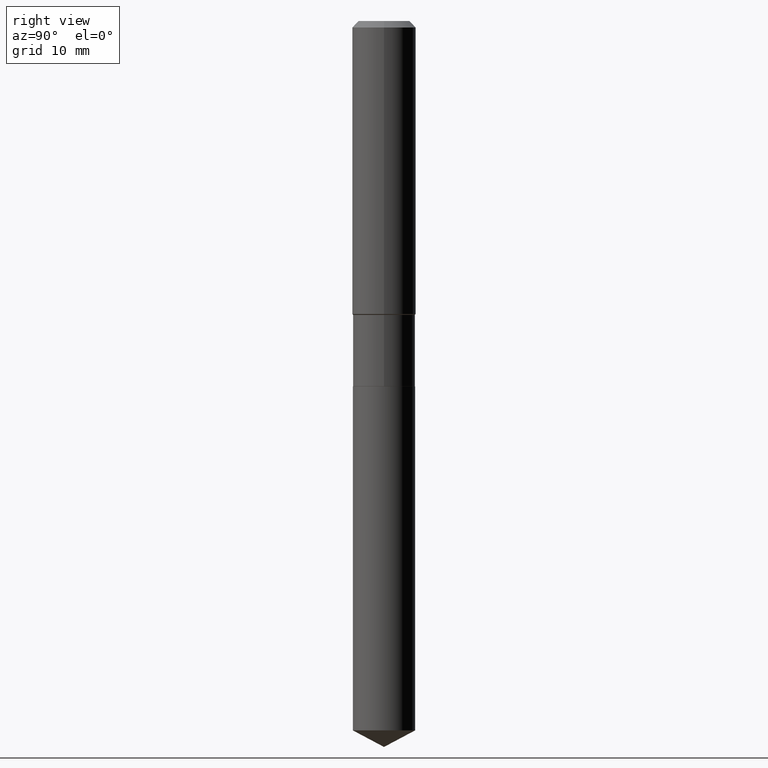
[diagram: clean part render]
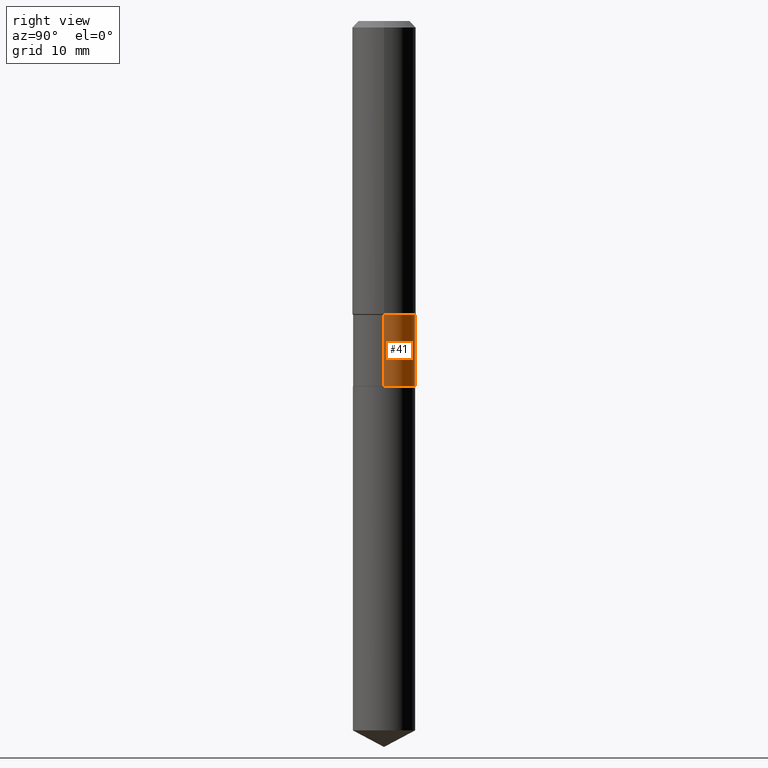
[diagram: same view with one face highlighted and labeled with its STEP entity id]
A machine part, right view. The second image highlights one B-rep face of the part: STEP entity #41.
In plain terms, the highlighted cylindrical surface (edge-blend (fillet) strip) has radius 3.9002 mm, axis along (-0, 0, 1).
Its self-contained STEP definition (entity closure, byte-faithful):
#32 = VERTEX_POINT ( 'NONE', #226 ) ;
#40 = CARTESIAN_POINT ( 'NONE',  ( 0.000000000000000000, 0.000000000000000000, 0.000000000000000000 ) ) ;
#41 = ADVANCED_FACE ( 'NONE', ( #76 ), #222, .T. ) ;
#46 = DIRECTION ( 'NONE',  ( 1.000000000000000000, -6.982962677686269077E-15, 0.000000000000000000 ) ) ;
#67 = ORIENTED_EDGE ( 'NONE', *, *, #321, .T. ) ;
#74 = DIRECTION ( 'NONE',  ( -2.445468806185136877E-29, 3.491481338843145188E-15, 1.000000000000000000 ) ) ;
#76 = FACE_OUTER_BOUND ( 'NONE', #359, .T. ) ;
#109 = CARTESIAN_POINT ( 'NONE',  ( -0.1535499999999999921, -4.587332304667917085E-15, -1.802700000000000191 ) ) ;
#110 = VERTEX_POINT ( 'NONE', #264 ) ;
#120 = CARTESIAN_POINT ( 'NONE',  ( 4.408446616909946105E-29, -6.294093409532539036E-15, -1.802700000000000191 ) ) ;
#171 = AXIS2_PLACEMENT_3D ( 'NONE', #460, #481, #418 ) ;
#173 = DIRECTION ( 'NONE',  ( -2.445468806185136877E-29, 3.491481338843145188E-15, 1.000000000000000000 ) ) ;
#177 = AXIS2_PLACEMENT_3D ( 'NONE', #40, #416, #187 ) ;
#182 = ORIENTED_EDGE ( 'NONE', *, *, #256, .F. ) ;
#187 = DIRECTION ( 'NONE',  ( 1.000000000000000000, -6.982962677686266711E-15, 4.876176775795935793E-29 ) ) ;
#200 = CIRCLE ( 'NONE', #171, 0.1535499999999999365 ) ;
#203 = VECTOR ( 'NONE', #74, 39.37007874015748143 ) ;
#222 = CYLINDRICAL_SURFACE ( 'NONE', #177, 0.1535499999999999643 ) ;
#224 = CIRCLE ( 'NONE', #355, 0.1535499999999999921 ) ;
#226 = CARTESIAN_POINT ( 'NONE',  ( 0.1535499999999999365, -6.134881860481286866E-15, -1.450000000000000178 ) ) ;
#238 = LINE ( 'NONE', #391, #380 ) ;
#244 = ORIENTED_EDGE ( 'NONE', *, *, #436, .F. ) ;
#256 = EDGE_CURVE ( 'NONE', #32, #110, #200, .T. ) ;
#264 = CARTESIAN_POINT ( 'NONE',  ( -0.1535499999999999365, -4.587332304667917085E-15, -1.450000000000000178 ) ) ;
#299 = EDGE_CURVE ( 'NONE', #402, #336, #224, .T. ) ;
#309 = CARTESIAN_POINT ( 'NONE',  ( 0.1535499999999999921, -7.366327328691265182E-15, -1.802700000000000191 ) ) ;
#321 = EDGE_CURVE ( 'NONE', #336, #110, #447, .T. ) ;
#335 = DIRECTION ( 'NONE',  ( -2.445468806185136597E-29, 3.491481338843145583E-15, 1.000000000000000000 ) ) ;
#336 = VERTEX_POINT ( 'NONE', #109 ) ;
#355 = AXIS2_PLACEMENT_3D ( 'NONE', #120, #335, #46 ) ;
#359 = EDGE_LOOP ( 'NONE', ( #407, #67, #182, #244 ) ) ;
#380 = VECTOR ( 'NONE', #173, 39.37007874015748143 ) ;
#391 = CARTESIAN_POINT ( 'NONE',  ( 0.1535499999999999643, -1.072233919158725949E-15, 7.487369439234657779E-30 ) ) ;
#402 = VERTEX_POINT ( 'NONE', #309 ) ;
#407 = ORIENTED_EDGE ( 'NONE', *, *, #299, .T. ) ;
#414 = CARTESIAN_POINT ( 'NONE',  ( -0.1535499999999999643, 1.091038370759633582E-15, -7.553024831086406471E-30 ) ) ;
#416 = DIRECTION ( 'NONE',  ( -2.445468806185136597E-29, 3.491481338843145583E-15, 1.000000000000000000 ) ) ;
#418 = DIRECTION ( 'NONE',  ( 1.000000000000000000, -6.982962677686265133E-15, 0.000000000000000000 ) ) ;
#436 = EDGE_CURVE ( 'NONE', #402, #32, #238, .T. ) ;
#447 = LINE ( 'NONE', #414, #203 ) ;
#460 = CARTESIAN_POINT ( 'NONE',  ( 3.545929768968448850E-29, -5.062647941322561509E-15, -1.450000000000000178 ) ) ;
#481 = DIRECTION ( 'NONE',  ( -2.445468806185136597E-29, 3.491481338843145583E-15, 1.000000000000000000 ) ) ;